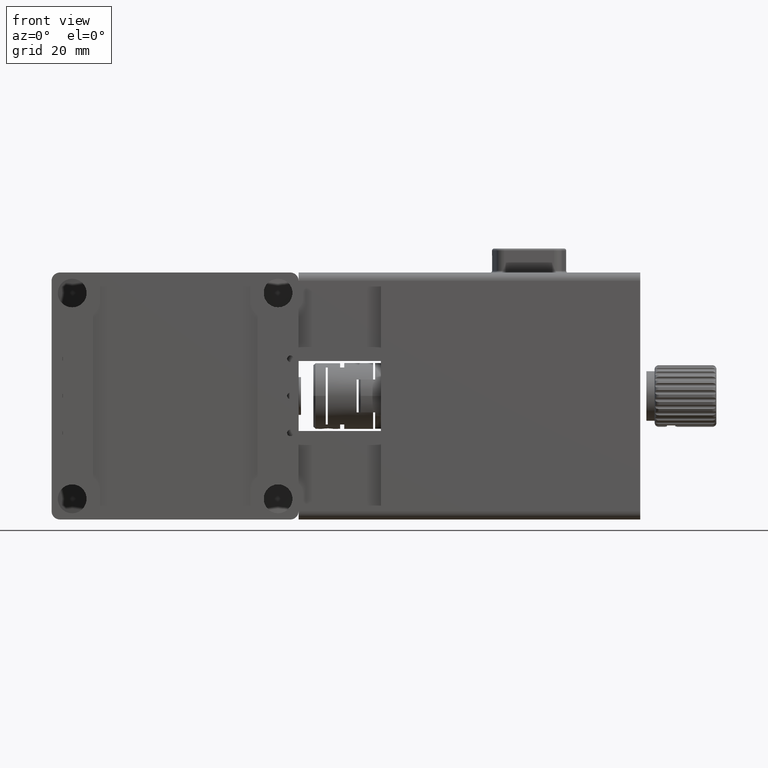
[diagram: clean part render]
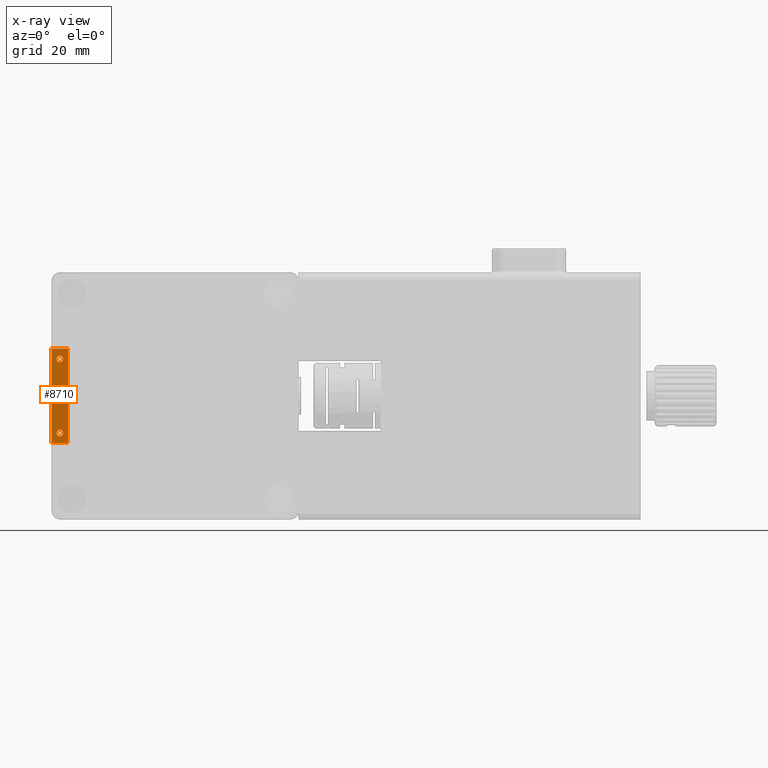
[diagram: x-ray — body ghosted, one internal face saturated and labeled with its STEP entity id]
A machine part, front view, then the same camera in x-ray: the body is ghosted and one INTERNAL B-rep face — a face not visible from any outside direction — is saturated and labeled: STEP entity #8710.
In plain terms, the highlighted planar face has unit normal (0, -1, 0).
Its self-contained STEP definition (entity closure, byte-faithful):
#273 = AXIS2_PLACEMENT_3D ( 'NONE', #15145, #42323, #19075 ) ;
#1557 = EDGE_CURVE ( 'NONE', #6005, #7216, #36310, .T. ) ;
#2386 = VERTEX_POINT ( 'NONE', #12708 ) ;
#2916 = DIRECTION ( 'NONE',  ( 1.000000000000000000, -0.0000000000000000000, -0.0000000000000000000 ) ) ;
#3563 = DIRECTION ( 'NONE',  ( 0.0000000000000000000, 0.0000000000000000000, 1.000000000000000000 ) ) ;
#3584 = EDGE_CURVE ( 'NONE', #4787, #9710, #24232, .T. ) ;
#3837 = CARTESIAN_POINT ( 'NONE',  ( 0.0000000000000000000, 9.999999999999998200, -11.49999999999999500 ) ) ;
#4618 = VECTOR ( 'NONE', #3563, 1000.000000000000000 ) ;
#4787 = VERTEX_POINT ( 'NONE', #34398 ) ;
#5002 = ORIENTED_EDGE ( 'NONE', *, *, #6487, .F. ) ;
#6005 = VERTEX_POINT ( 'NONE', #49323 ) ;
#6306 = CARTESIAN_POINT ( 'NONE',  ( -27.99999999999999600, 9.999999999999998200, 0.0000000000000000000 ) ) ;
#6487 = EDGE_CURVE ( 'NONE', #6005, #9710, #43866, .T. ) ;
#6518 = VECTOR ( 'NONE', #2916, 1000.000000000000000 ) ;
#7047 = CIRCLE ( 'NONE', #273, 0.7999999999999933800 ) ;
#7199 = CARTESIAN_POINT ( 'NONE',  ( -27.99999999999999600, 9.999999999999998200, 0.0000000000000000000 ) ) ;
#7216 = VERTEX_POINT ( 'NONE', #25123 ) ;
#7596 = EDGE_LOOP ( 'NONE', ( #47405, #24510 ) ) ;
#7757 = DIRECTION ( 'NONE',  ( -1.000000000000000000, -0.0000000000000000000, -0.0000000000000000000 ) ) ;
#8710 = ADVANCED_FACE ( 'NONE', ( #33347, #43685, #12692, #23046 ), #48318, .F. ) ;
#9710 = VERTEX_POINT ( 'NONE', #48535 ) ;
#10232 = DIRECTION ( 'NONE',  ( 0.0000000000000000000, 0.0000000000000000000, -1.000000000000000000 ) ) ;
#10855 = AXIS2_PLACEMENT_3D ( 'NONE', #6306, #33498, #10232 ) ;
#11022 = EDGE_LOOP ( 'NONE', ( #30085, #37387 ) ) ;
#11104 = EDGE_LOOP ( 'NONE', ( #46825, #36959 ) ) ;
#11131 = DIRECTION ( 'NONE',  ( 0.0000000000000000000, 0.0000000000000000000, -1.000000000000000000 ) ) ;
#11287 = VERTEX_POINT ( 'NONE', #22785 ) ;
#12692 = FACE_BOUND ( 'NONE', #11022, .T. ) ;
#12708 = CARTESIAN_POINT ( 'NONE',  ( -27.99999999999999600, 9.999999999999998200, 8.200000000000006400 ) ) ;
#12884 = VECTOR ( 'NONE', #41263, 1000.000000000000000 ) ;
#13425 = CARTESIAN_POINT ( 'NONE',  ( -27.99999999999999600, 9.999999999999998200, -0.7999999999999933800 ) ) ;
#14432 = AXIS2_PLACEMENT_3D ( 'NONE', #43883, #20649, #47773 ) ;
#15145 = CARTESIAN_POINT ( 'NONE',  ( -27.99999999999999600, 9.999999999999998200, -9.000000000000000000 ) ) ;
#15317 = CARTESIAN_POINT ( 'NONE',  ( -26.00000000000000000, 9.999999999999998200, -13.49999999999999500 ) ) ;
#17162 = AXIS2_PLACEMENT_3D ( 'NONE', #17430, #44578, #21345 ) ;
#17272 = CARTESIAN_POINT ( 'NONE',  ( -27.99999999999999600, 9.999999999999998200, -8.200000000000006400 ) ) ;
#17430 = CARTESIAN_POINT ( 'NONE',  ( 0.0000000000000000000, 9.999999999999998200, 0.0000000000000000000 ) ) ;
#18119 = CARTESIAN_POINT ( 'NONE',  ( -27.99999999999999600, 9.999999999999998200, 9.000000000000000000 ) ) ;
#18612 = CARTESIAN_POINT ( 'NONE',  ( 0.0000000000000000000, 9.999999999999998200, 11.49999999999999800 ) ) ;
#19075 = DIRECTION ( 'NONE',  ( 0.0000000000000000000, 0.0000000000000000000, -1.000000000000000000 ) ) ;
#20438 = DIRECTION ( 'NONE',  ( 0.0000000000000000000, -1.000000000000000000, 0.0000000000000000000 ) ) ;
#20649 = DIRECTION ( 'NONE',  ( 0.0000000000000000000, -1.000000000000000000, 0.0000000000000000000 ) ) ;
#21345 = DIRECTION ( 'NONE',  ( 0.0000000000000000000, -0.0000000000000000000, -1.000000000000000000 ) ) ;
#22035 = DIRECTION ( 'NONE',  ( 0.0000000000000000000, 0.0000000000000000000, -1.000000000000000000 ) ) ;
#22785 = CARTESIAN_POINT ( 'NONE',  ( -27.99999999999999600, 9.999999999999998200, -9.799999999999993600 ) ) ;
#23031 = VECTOR ( 'NONE', #7757, 1000.000000000000000 ) ;
#23046 = FACE_OUTER_BOUND ( 'NONE', #37624, .T. ) ;
#24232 = LINE ( 'NONE', #3837, #23031 ) ;
#24510 = ORIENTED_EDGE ( 'NONE', *, *, #36330, .T. ) ;
#25123 = CARTESIAN_POINT ( 'NONE',  ( -26.00000000000000000, 9.999999999999998200, 11.50000000000000000 ) ) ;
#26731 = EDGE_CURVE ( 'NONE', #2386, #41223, #49395, .T. ) ;
#28310 = CIRCLE ( 'NONE', #10855, 0.7999999999999933800 ) ;
#28409 = ORIENTED_EDGE ( 'NONE', *, *, #45995, .F. ) ;
#30085 = ORIENTED_EDGE ( 'NONE', *, *, #26731, .T. ) ;
#30177 = EDGE_CURVE ( 'NONE', #48578, #37083, #49411, .T. ) ;
#30182 = ORIENTED_EDGE ( 'NONE', *, *, #3584, .T. ) ;
#30743 = AXIS2_PLACEMENT_3D ( 'NONE', #7199, #34391, #11131 ) ;
#30767 = CIRCLE ( 'NONE', #37651, 0.7999999999999933800 ) ;
#33347 = FACE_BOUND ( 'NONE', #7596, .T. ) ;
#33498 = DIRECTION ( 'NONE',  ( 0.0000000000000000000, -1.000000000000000000, 0.0000000000000000000 ) ) ;
#34213 = ORIENTED_EDGE ( 'NONE', *, *, #1557, .T. ) ;
#34248 = VERTEX_POINT ( 'NONE', #17272 ) ;
#34357 = AXIS2_PLACEMENT_3D ( 'NONE', #43690, #20438, #47566 ) ;
#34391 = DIRECTION ( 'NONE',  ( 0.0000000000000000000, -1.000000000000000000, 0.0000000000000000000 ) ) ;
#34398 = CARTESIAN_POINT ( 'NONE',  ( -26.00000000000000000, 9.999999999999998200, -11.49999999999999500 ) ) ;
#35618 = LINE ( 'NONE', #15317, #4618 ) ;
#36310 = LINE ( 'NONE', #18612, #6518 ) ;
#36330 = EDGE_CURVE ( 'NONE', #34248, #11287, #41010, .T. ) ;
#36474 = EDGE_CURVE ( 'NONE', #37083, #48578, #28310, .T. ) ;
#36959 = ORIENTED_EDGE ( 'NONE', *, *, #36474, .T. ) ;
#37083 = VERTEX_POINT ( 'NONE', #37161 ) ;
#37161 = CARTESIAN_POINT ( 'NONE',  ( -27.99999999999999600, 9.999999999999998200, 0.7999999999999933800 ) ) ;
#37364 = CARTESIAN_POINT ( 'NONE',  ( -30.00000000000000000, 9.999999999999998200, -13.49999999999999500 ) ) ;
#37387 = ORIENTED_EDGE ( 'NONE', *, *, #38666, .T. ) ;
#37624 = EDGE_LOOP ( 'NONE', ( #5002, #34213, #28409, #30182 ) ) ;
#37651 = AXIS2_PLACEMENT_3D ( 'NONE', #18119, #45233, #22035 ) ;
#37928 = CARTESIAN_POINT ( 'NONE',  ( -27.99999999999999600, 9.999999999999998200, 9.799999999999993600 ) ) ;
#38666 = EDGE_CURVE ( 'NONE', #41223, #2386, #30767, .T. ) ;
#41010 = CIRCLE ( 'NONE', #14432, 0.7999999999999933800 ) ;
#41223 = VERTEX_POINT ( 'NONE', #37928 ) ;
#41263 = DIRECTION ( 'NONE',  ( -0.0000000000000000000, -0.0000000000000000000, -1.000000000000000000 ) ) ;
#42323 = DIRECTION ( 'NONE',  ( 0.0000000000000000000, -1.000000000000000000, 0.0000000000000000000 ) ) ;
#43685 = FACE_BOUND ( 'NONE', #11104, .T. ) ;
#43690 = CARTESIAN_POINT ( 'NONE',  ( -27.99999999999999600, 9.999999999999998200, 9.000000000000000000 ) ) ;
#43866 = LINE ( 'NONE', #37364, #12884 ) ;
#43883 = CARTESIAN_POINT ( 'NONE',  ( -27.99999999999999600, 9.999999999999998200, -9.000000000000000000 ) ) ;
#44578 = DIRECTION ( 'NONE',  ( 0.0000000000000000000, -1.000000000000000000, 0.0000000000000000000 ) ) ;
#45233 = DIRECTION ( 'NONE',  ( 0.0000000000000000000, -1.000000000000000000, 0.0000000000000000000 ) ) ;
#45927 = EDGE_CURVE ( 'NONE', #11287, #34248, #7047, .T. ) ;
#45995 = EDGE_CURVE ( 'NONE', #4787, #7216, #35618, .T. ) ;
#46825 = ORIENTED_EDGE ( 'NONE', *, *, #30177, .T. ) ;
#47405 = ORIENTED_EDGE ( 'NONE', *, *, #45927, .T. ) ;
#47566 = DIRECTION ( 'NONE',  ( 0.0000000000000000000, 0.0000000000000000000, -1.000000000000000000 ) ) ;
#47773 = DIRECTION ( 'NONE',  ( 0.0000000000000000000, 0.0000000000000000000, -1.000000000000000000 ) ) ;
#48318 = PLANE ( 'NONE',  #17162 ) ;
#48535 = CARTESIAN_POINT ( 'NONE',  ( -30.00000000000000000, 9.999999999999998200, -11.49999999999999500 ) ) ;
#48578 = VERTEX_POINT ( 'NONE', #13425 ) ;
#49323 = CARTESIAN_POINT ( 'NONE',  ( -30.00000000000000000, 9.999999999999998200, 11.50000000000000000 ) ) ;
#49395 = CIRCLE ( 'NONE', #34357, 0.7999999999999933800 ) ;
#49411 = CIRCLE ( 'NONE', #30743, 0.7999999999999933800 ) ;